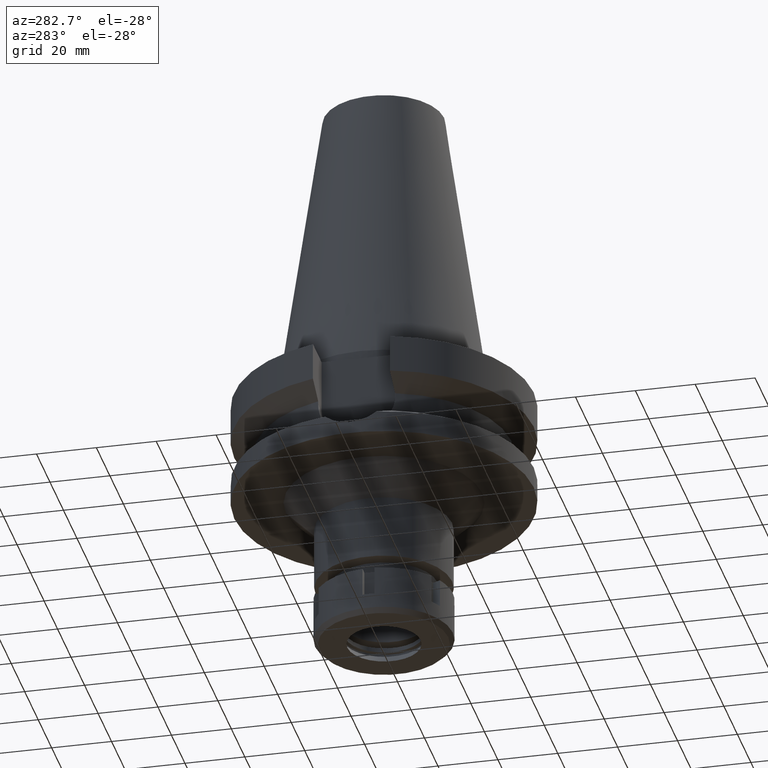
[diagram: clean part render]
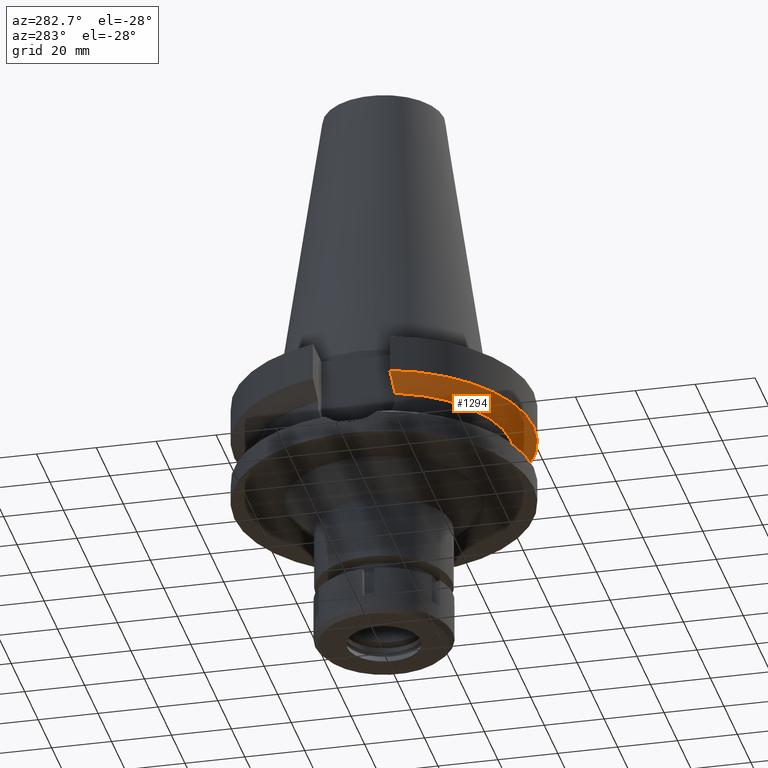
[diagram: same view with one face highlighted and labeled with its STEP entity id]
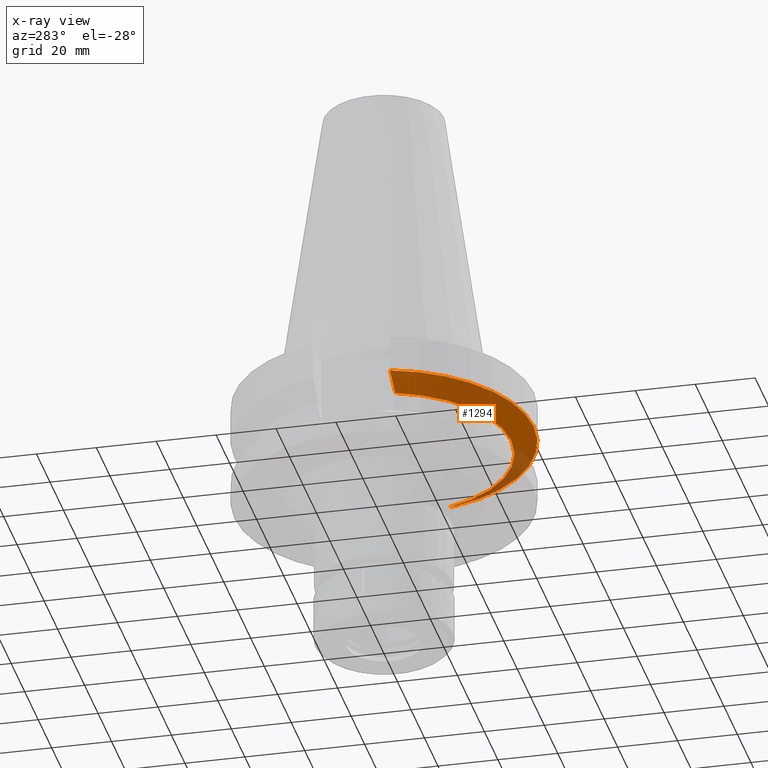
[diagram: x-ray of the same camera — body ghosted, the highlighted face saturated]
A machine part, auxiliary view. The second image highlights one B-rep face of the part: STEP entity #1294.
The next image is the same camera in x-ray: the body ghosted, the highlighted face saturated — about 14% of this face is hidden behind the body in this view.
In plain terms, the highlighted conical surface has half-angle 60 deg.
Its self-contained STEP definition (entity closure, byte-faithful):
#224 = DIRECTION ( 'NONE',  ( 0.0000000000000000000, 0.0000000000000000000, 1.000000000000000000 ) ) ;
#274 = ORIENTED_EDGE ( 'NONE', *, *, #1144, .F. ) ;
#334 = CARTESIAN_POINT ( 'NONE',  ( 0.0000000000000000000, 1.006319759053999930E-14, -17.82775574519000017 ) ) ;
#525 = CARTESIAN_POINT ( 'NONE',  ( -42.90862369645684993, -12.84999295812308162, -18.67324849272428366 ) ) ;
#762 = EDGE_CURVE ( 'NONE', #1272, #1679, #1074, .T. ) ;
#853 = DIRECTION ( 'NONE',  ( 0.0000000000000000000, 0.0000000000000000000, 1.000000000000000000 ) ) ;
#878 = CARTESIAN_POINT ( 'NONE',  ( 48.32057015392000210, -12.84999999999999964, -15.66269223573000069 ) ) ;
#1035 = VERTEX_POINT ( 'NONE', #2207 ) ;
#1074 = CIRCLE ( 'NONE', #1528, 42.50000000000002132 ) ;
#1144 = EDGE_CURVE ( 'NONE', #1035, #2330, #2773, .T. ) ;
#1258 = CARTESIAN_POINT ( 'NONE',  ( 45.51179334065123783, -12.85000765526269895, -17.22987020375978773 ) ) ;
#1272 = VERTEX_POINT ( 'NONE', #3379 ) ;
#1294 = ADVANCED_FACE ( 'NONE', ( #3344 ), #1591, .T. ) ;
#1528 = AXIS2_PLACEMENT_3D ( 'NONE', #3396, #3363, #1681 ) ;
#1548 = CARTESIAN_POINT ( 'NONE',  ( 40.51083188481999997, -12.84999999999999964, -19.99281925464999787 ) ) ;
#1591 = CONICAL_SURFACE ( 'NONE', #2303, 46.25000000000000000, 1.047197551196400456 ) ;
#1645 = CARTESIAN_POINT ( 'NONE',  ( -40.51083300052000169, -12.84999648263999994, -19.99284624794000109 ) ) ;
#1650 = AXIS2_PLACEMENT_3D ( 'NONE', #2736, #224, #3291 ) ;
#1679 = VERTEX_POINT ( 'NONE', #2763 ) ;
#1681 = DIRECTION ( 'NONE',  ( 0.9531960443486575674, -0.3023529411764863672, 0.0000000000000000000 ) ) ;
#1814 = B_SPLINE_CURVE_WITH_KNOTS ( 'NONE', 3,
 ( #2993, #1927, #525, #1645 ),
 .UNSPECIFIED., .F., .F.,
 ( 4, 4 ),
 ( 0.0000000000000000000, 1.000000000000000000 ),
 .UNSPECIFIED. ) ;
#1927 = CARTESIAN_POINT ( 'NONE',  ( -45.51179786541798933, -12.85000766677224249, -17.22986770698864234 ) ) ;
#1976 = DIRECTION ( 'NONE',  ( 0.0000000000000000000, 1.000000000000000000, 0.0000000000000000000 ) ) ;
#2207 = CARTESIAN_POINT ( 'NONE',  ( -48.32056913388000652, -12.85000383569999904, -15.66265787588000080 ) ) ;
#2303 = AXIS2_PLACEMENT_3D ( 'NONE', #334, #853, #1976 ) ;
#2330 = VERTEX_POINT ( 'NONE', #878 ) ;
#2382 = ORIENTED_EDGE ( 'NONE', *, *, #2412, .T. ) ;
#2412 = EDGE_CURVE ( 'NONE', #1272, #2330, #2959, .T. ) ;
#2604 = EDGE_CURVE ( 'NONE', #1035, #1679, #1814, .T. ) ;
#2661 = CARTESIAN_POINT ( 'NONE',  ( 48.32057015392000210, -12.84999999999999964, -15.66269223573000069 ) ) ;
#2736 = CARTESIAN_POINT ( 'NONE',  ( 0.0000000000000000000, 1.006319759053999930E-14, -15.66269223573000069 ) ) ;
#2763 = CARTESIAN_POINT ( 'NONE',  ( -40.51083300052000169, -12.84999648263999994, -19.99284624794000109 ) ) ;
#2773 = CIRCLE ( 'NONE', #1650, 50.00000000000000000 ) ;
#2911 = ORIENTED_EDGE ( 'NONE', *, *, #2604, .T. ) ;
#2932 = CARTESIAN_POINT ( 'NONE',  ( 42.90862730168823447, -12.84999293376989549, -18.67324648127325659 ) ) ;
#2959 = B_SPLINE_CURVE_WITH_KNOTS ( 'NONE', 3,
 ( #1548, #2932, #1258, #2661 ),
 .UNSPECIFIED., .F., .F.,
 ( 4, 4 ),
 ( 0.0000000000000000000, 1.000000000000000000 ),
 .UNSPECIFIED. ) ;
#2993 = CARTESIAN_POINT ( 'NONE',  ( -48.32056913388000652, -12.85000383569999904, -15.66265787588000080 ) ) ;
#3291 = DIRECTION ( 'NONE',  ( 0.0000000000000000000, -1.000000000000000000, 0.0000000000000000000 ) ) ;
#3344 = FACE_OUTER_BOUND ( 'NONE', #3583, .T. ) ;
#3363 = DIRECTION ( 'NONE',  ( 0.0000000000000000000, 0.0000000000000000000, -1.000000000000000000 ) ) ;
#3379 = CARTESIAN_POINT ( 'NONE',  ( 40.51083188481999997, -12.84999999999999964, -19.99281925464999787 ) ) ;
#3396 = CARTESIAN_POINT ( 'NONE',  ( 0.0000000000000000000, 1.006319759053999930E-14, -19.99281925464999787 ) ) ;
#3557 = ORIENTED_EDGE ( 'NONE', *, *, #762, .F. ) ;
#3583 = EDGE_LOOP ( 'NONE', ( #2911, #3557, #2382, #274 ) ) ;